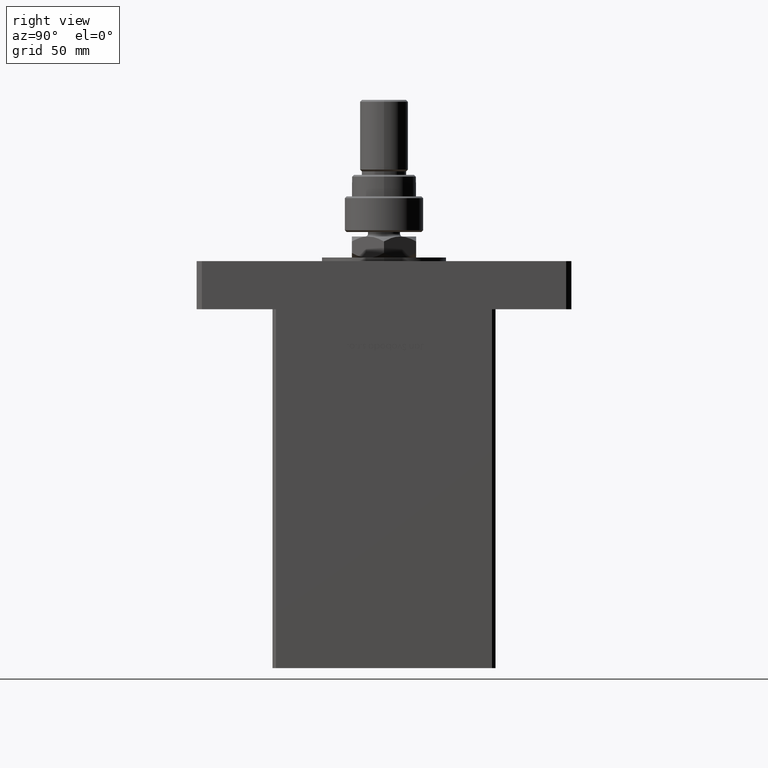
[diagram: clean part render]
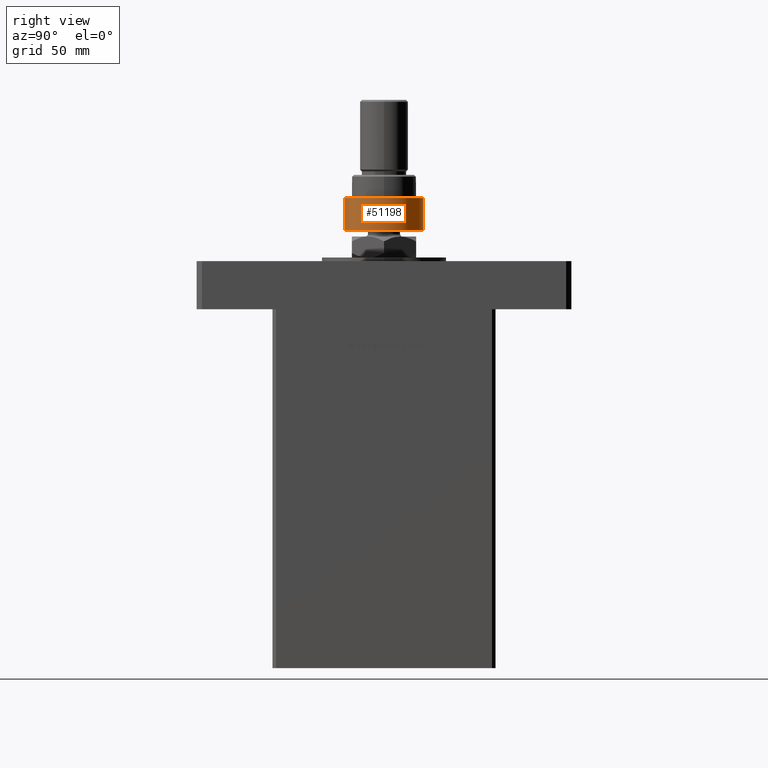
[diagram: same view with one face highlighted and labeled with its STEP entity id]
A machine part, right view. The second image highlights one B-rep face of the part: STEP entity #51198.
In plain terms, the highlighted cylindrical surface (partial cylindrical patch) has radius 22 mm, axis along (-0, -0, -1).
Its self-contained STEP definition (entity closure, byte-faithful):
#653 = CARTESIAN_POINT ( 'NONE',  ( 22.00000000000000000, 0.000000000000000000, 1.000000000000000888 ) ) ;
#1807 = DIRECTION ( 'NONE',  ( -1.000000000000000000, 0.000000000000000000, 0.000000000000000000 ) ) ;
#2116 = EDGE_LOOP ( 'NONE', ( #45353, #7508, #11271, #11848, #24003 ) ) ;
#2378 = EDGE_CURVE ( 'NONE', #42087, #52946, #47526, .T. ) ;
#4827 = VERTEX_POINT ( 'NONE', #653 ) ;
#4887 = DIRECTION ( 'NONE',  ( 1.000000000000000000, 0.000000000000000000, 0.000000000000000000 ) ) ;
#4972 = VECTOR ( 'NONE', #20670, 1000.000000000000000 ) ;
#6640 = CYLINDRICAL_SURFACE ( 'NONE', #11653, 22.00000000000000000 ) ;
#7175 = AXIS2_PLACEMENT_3D ( 'NONE', #31460, #48894, #24297 ) ;
#7508 = ORIENTED_EDGE ( 'NONE', *, *, #12282, .T. ) ;
#7691 = DIRECTION ( 'NONE',  ( -0.000000000000000000, -0.000000000000000000, 1.000000000000000000 ) ) ;
#10627 = DIRECTION ( 'NONE',  ( -0.000000000000000000, -0.000000000000000000, -1.000000000000000000 ) ) ;
#11271 = ORIENTED_EDGE ( 'NONE', *, *, #31117, .T. ) ;
#11653 = AXIS2_PLACEMENT_3D ( 'NONE', #46294, #10627, #1807 ) ;
#11848 = ORIENTED_EDGE ( 'NONE', *, *, #24466, .T. ) ;
#12282 = EDGE_CURVE ( 'NONE', #42087, #27864, #44472, .T. ) ;
#18998 = CIRCLE ( 'NONE', #7175, 22.00000000000000000 ) ;
#20670 = DIRECTION ( 'NONE',  ( -0.000000000000000000, -0.000000000000000000, -1.000000000000000000 ) ) ;
#21128 = VECTOR ( 'NONE', #42816, 1000.000000000000000 ) ;
#22251 = CARTESIAN_POINT ( 'NONE',  ( -19.84313483298442193, -9.500000000000005329, 18.99999999999998579 ) ) ;
#24003 = ORIENTED_EDGE ( 'NONE', *, *, #53214, .T. ) ;
#24297 = DIRECTION ( 'NONE',  ( 1.000000000000000000, 0.000000000000000000, 0.000000000000000000 ) ) ;
#24466 = EDGE_CURVE ( 'NONE', #45585, #4827, #26559, .T. ) ;
#24504 = DIRECTION ( 'NONE',  ( 1.000000000000000000, 0.000000000000000000, 0.000000000000000000 ) ) ;
#26551 = CARTESIAN_POINT ( 'NONE',  ( 0.000000000000000000, 0.000000000000000000, 18.99999999999998579 ) ) ;
#26559 = CIRCLE ( 'NONE', #39324, 22.00000000000000000 ) ;
#27864 = VERTEX_POINT ( 'NONE', #22251 ) ;
#28034 = AXIS2_PLACEMENT_3D ( 'NONE', #26551, #47980, #4887 ) ;
#31117 = EDGE_CURVE ( 'NONE', #27864, #45585, #55390, .T. ) ;
#31460 = CARTESIAN_POINT ( 'NONE',  ( 0.000000000000000000, 0.000000000000000000, 1.000000000000000888 ) ) ;
#37276 = CARTESIAN_POINT ( 'NONE',  ( -19.84313483298442193, -9.500000000000005329, 1.000000000000000888 ) ) ;
#39324 = AXIS2_PLACEMENT_3D ( 'NONE', #41070, #7691, #24504 ) ;
#41070 = CARTESIAN_POINT ( 'NONE',  ( 0.000000000000000000, 0.000000000000000000, 1.000000000000000888 ) ) ;
#42087 = VERTEX_POINT ( 'NONE', #42463 ) ;
#42463 = CARTESIAN_POINT ( 'NONE',  ( -19.84313483298442904, 9.500000000000000000, 18.99999999999998579 ) ) ;
#42816 = DIRECTION ( 'NONE',  ( -0.000000000000000000, -0.000000000000000000, -1.000000000000000000 ) ) ;
#42964 = CARTESIAN_POINT ( 'NONE',  ( -19.84313483298442904, 9.500000000000000000, 23.00000000000000000 ) ) ;
#44472 = CIRCLE ( 'NONE', #28034, 22.00000000000000000 ) ;
#45353 = ORIENTED_EDGE ( 'NONE', *, *, #2378, .F. ) ;
#45585 = VERTEX_POINT ( 'NONE', #37276 ) ;
#46227 = CARTESIAN_POINT ( 'NONE',  ( -19.84313483298442193, -9.500000000000005329, 23.00000000000000000 ) ) ;
#46294 = CARTESIAN_POINT ( 'NONE',  ( 0.000000000000000000, 0.000000000000000000, 20.00000000000000000 ) ) ;
#47526 = LINE ( 'NONE', #42964, #4972 ) ;
#47980 = DIRECTION ( 'NONE',  ( 0.000000000000000000, 0.000000000000000000, -1.000000000000000000 ) ) ;
#48894 = DIRECTION ( 'NONE',  ( -0.000000000000000000, -0.000000000000000000, 1.000000000000000000 ) ) ;
#49729 = FACE_OUTER_BOUND ( 'NONE', #2116, .T. ) ;
#50159 = CARTESIAN_POINT ( 'NONE',  ( -19.84313483298442904, 9.500000000000000000, 1.000000000000000888 ) ) ;
#51198 = ADVANCED_FACE ( 'NONE', ( #49729 ), #6640, .T. ) ;
#52946 = VERTEX_POINT ( 'NONE', #50159 ) ;
#53214 = EDGE_CURVE ( 'NONE', #4827, #52946, #18998, .T. ) ;
#55390 = LINE ( 'NONE', #46227, #21128 ) ;